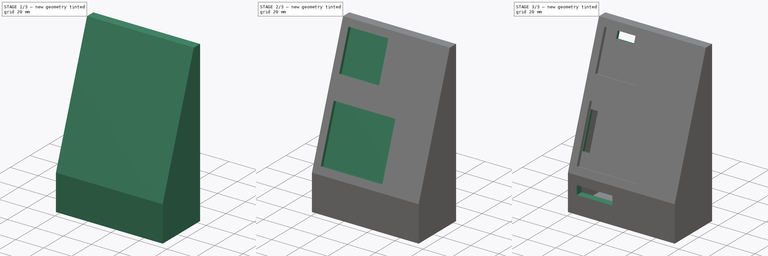
[diagram: build sequence overview — one tinted view per stage of 3, left to right]
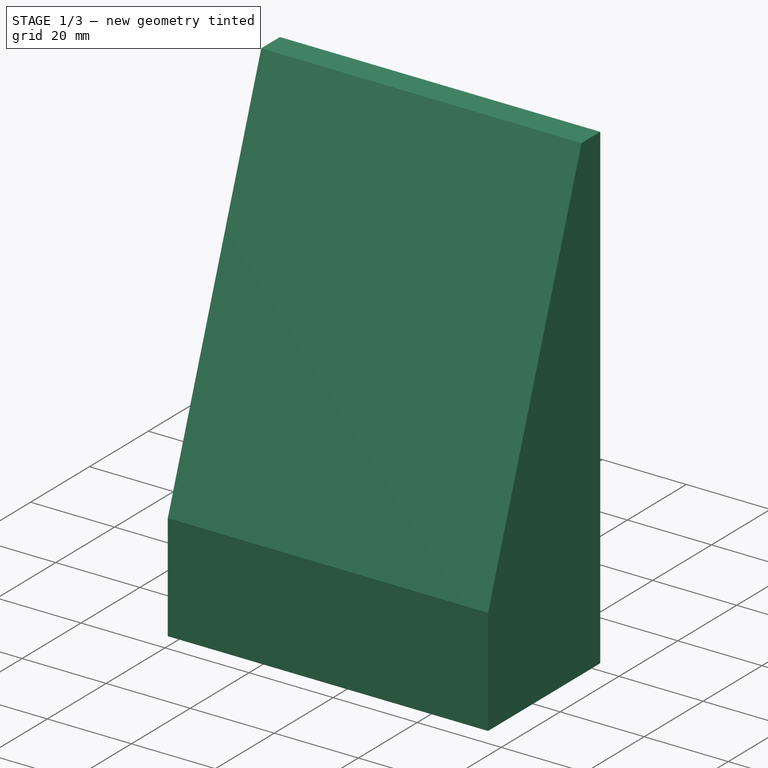
[diagram: stage 1 of 3 — iso view after this stage's code; geometry added in this stage tinted green]
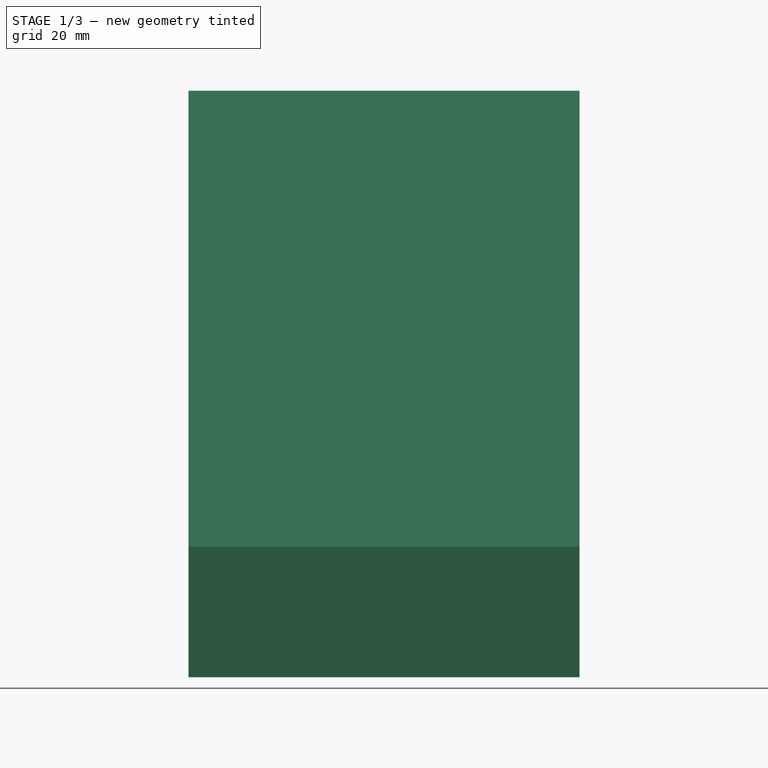
[diagram: stage 1 of 3 — front view after this stage's code; geometry added in this stage tinted green]
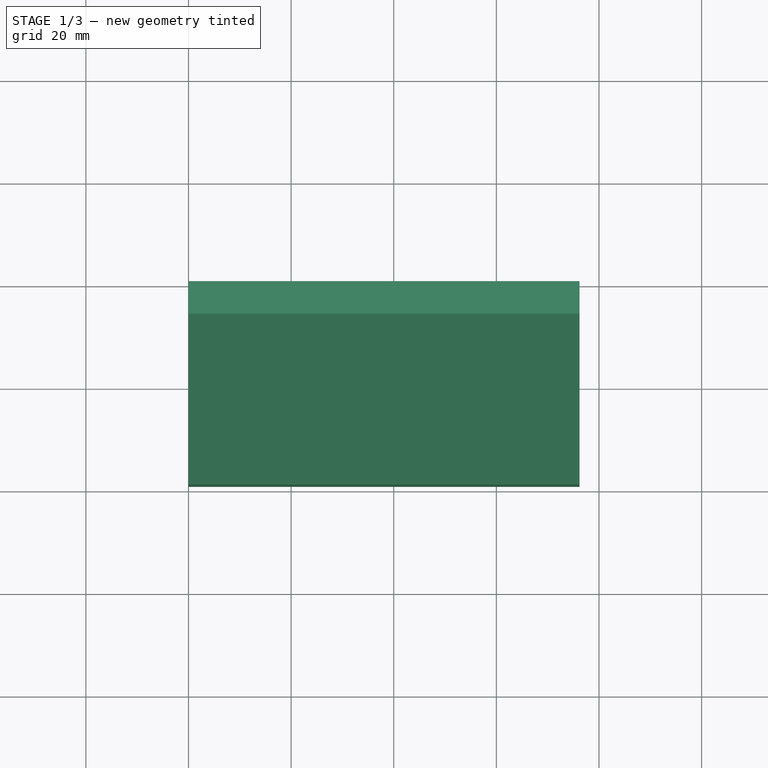
[diagram: stage 1 of 3 — top view after this stage's code; geometry added in this stage tinted green]
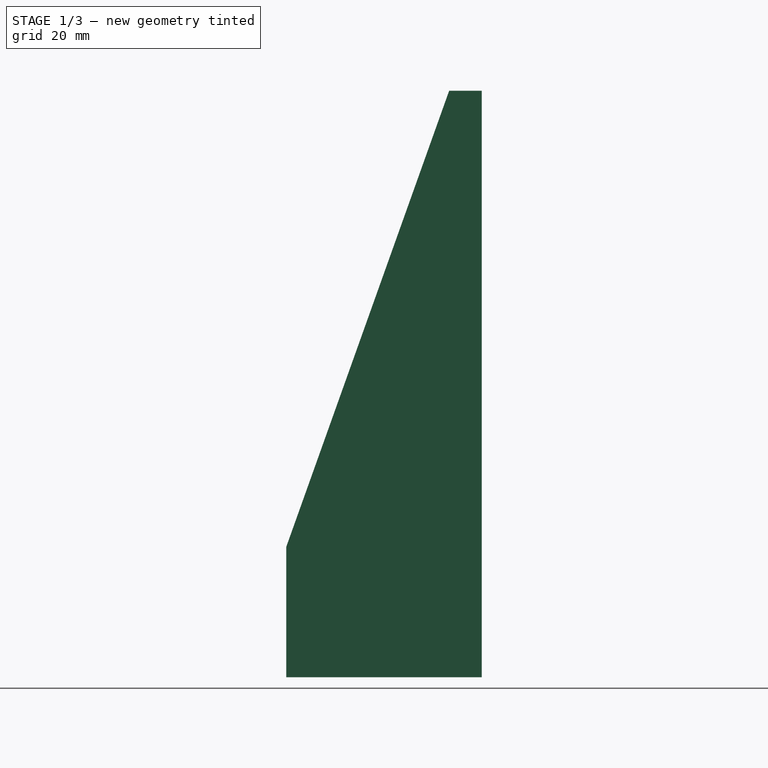
[diagram: stage 1 of 3 — right view after this stage's code; geometry added in this stage tinted green]
FCSTD DOCUMENT  (FreeCAD 0.18R4 (GitTag))
Label: Controls panel
License: All rights reserved
LicenseURL: http://en.wikipedia.org/wiki/All_rights_reserved
objects: Sketcher::SketchObject×4, PartDesign::Pocket×3, PartDesign::Pad×1, PartDesign::Thickness×1, PartDesign::Body×1
note: 14 computed .brp shape members not serialized (recipe doc carries the construction recipe); baked Part::Feature solids carry a one-line shape summary decoded from their .brp

FEATURE [Sketcher::SketchObject] Sketch
  MapMode = 5
  Placement = pos=(0,0,0) rot=(0.57735,0.57735,0.57735;2.0944rad)
  Support = -> [YZ_Plane]
  sketch-geometry (5):
    g0: LineSegment StartX=12.7 StartY=57.15 StartZ=0 EndX=19.05 EndY=57.15 EndZ=0
    g1: LineSegment StartX=19.05 StartY=57.15 StartZ=0 EndX=19.05 EndY=-57.15 EndZ=0
    g2: LineSegment StartX=19.05 StartY=-57.15 StartZ=0 EndX=-19.05 EndY=-57.15 EndZ=0
    g3: LineSegment StartX=-19.05 StartY=-57.15 StartZ=0 EndX=-19.05 EndY=-31.75 EndZ=0
    g4: LineSegment StartX=12.7 StartY=57.15 StartZ=0 EndX=-19.05 EndY=-31.75 EndZ=0
  constraints (13):
    c: Coincident(g0,g1)
    c: Coincident(g1,g2)
    c: Coincident(g2,g3)
    c: Horizontal(g0)
    c: Vertical(g3)
    c: Coincident(g0,g4)
    c: Coincident(g3,g4)
    c: DistanceX(g2,g2) = 38.1
    c: DistanceY(g1,g1) = 114.3
    c: DistanceY(g3,g3) = 25.4
    c: DistanceX(g0,g0) = 6.35
    c: Symmetric(g1,g2,g-2)
    c: Symmetric(g1,g0,g-1)
FEATURE [PartDesign::Pad] Pad  label="Body001"
  Length = 76.2
  Length2 = 100.076
  Placement = pos=(0,0,0) rot=(0.57735,0.57735,0.57735;2.0944rad)
  Profile = -> Sketch
  Type = 0
FEATURE [PartDesign::Thickness] Thickness  label="Shell"
  Base = -> Pad [Face2]
  BaseFeature = -> Pad
  Join = 0
  Mode = 0
  Reversed = true
  Value = 4.826
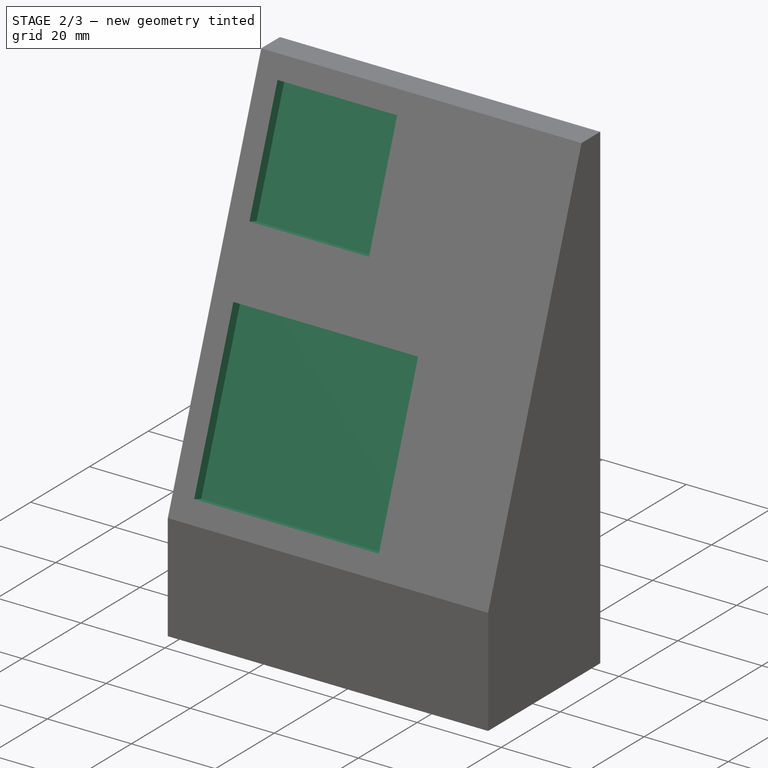
[diagram: stage 2 of 3 — iso view after this stage's code; geometry added in this stage tinted green]
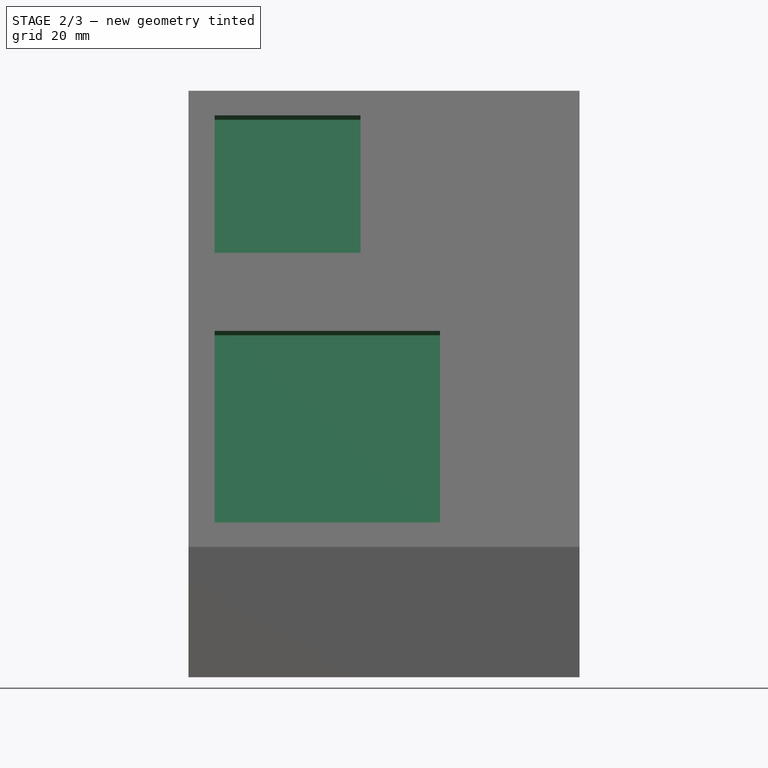
[diagram: stage 2 of 3 — front view after this stage's code; geometry added in this stage tinted green]
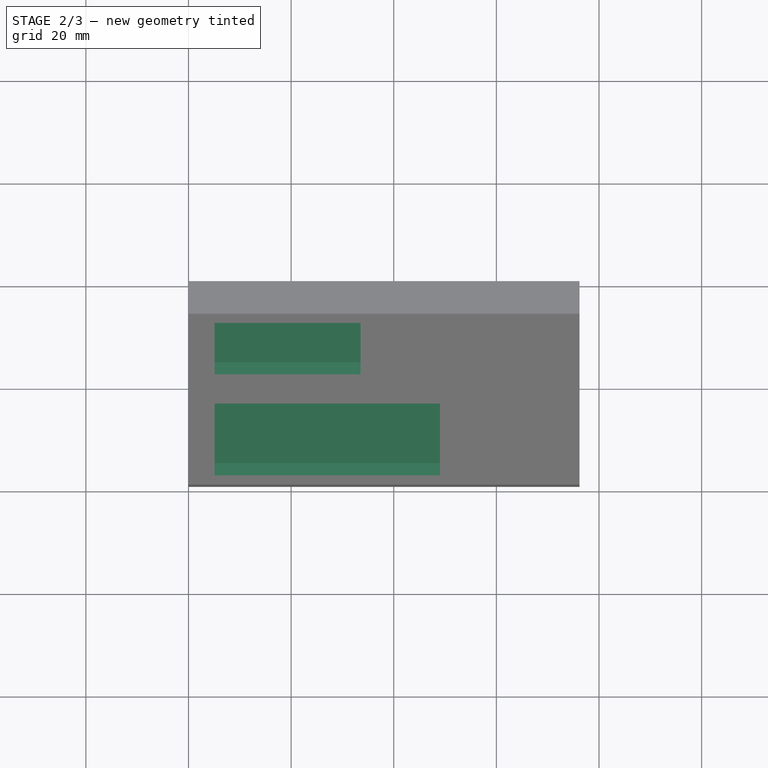
[diagram: stage 2 of 3 — top view after this stage's code; geometry added in this stage tinted green]
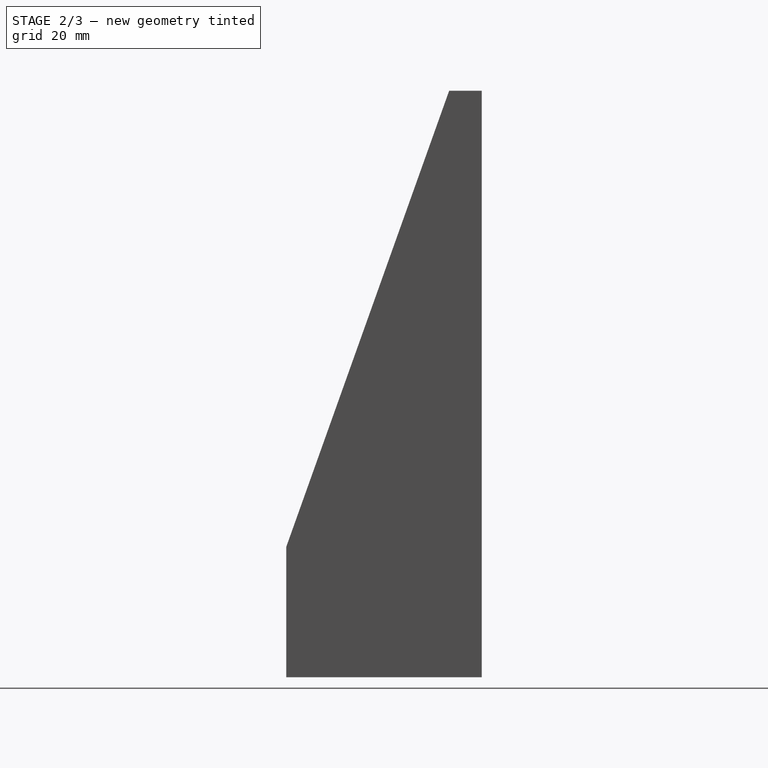
[diagram: stage 2 of 3 — right view after this stage's code; geometry added in this stage tinted green]
FEATURE [Sketcher::SketchObject] Sketch001
  ExternalGeometry = -> [Pad]
  MapMode = 5
  Placement = pos=(-4e-15,-6.83846,2.44231) rot=(1,0,0;1.22777rad)
  Support = -> [Thickness]
  sketch-geometry (8):
    g0: LineSegment StartX=5.08 StartY=8.39649 StartZ=0 EndX=49.022 EndY=8.39649 EndZ=0
    g1: LineSegment StartX=49.022 StartY=8.39649 StartZ=0 EndX=49.022 EndY=-31.2275 EndZ=0
    g2: LineSegment StartX=49.022 StartY=-31.2275 StartZ=0 EndX=5.08 EndY=-31.2275 EndZ=0
    g3: LineSegment StartX=5.08 StartY=-31.2275 StartZ=0 EndX=5.08 EndY=8.39649 EndZ=0
    g4: LineSegment StartX=5.08 StartY=24.564 StartZ=0 EndX=33.528 EndY=24.564 EndZ=0
    g5: LineSegment StartX=33.528 StartY=24.564 StartZ=0 EndX=33.528 EndY=53.012 EndZ=0
    g6: LineSegment StartX=33.528 StartY=53.012 StartZ=0 EndX=5.08 EndY=53.012 EndZ=0
    g7: LineSegment StartX=5.08 StartY=53.012 StartZ=0 EndX=5.08 EndY=24.564 EndZ=0
  constraints (24):
    c: Coincident(g0,g1)
    c: Coincident(g1,g2)
    c: Coincident(g2,g3)
    c: Coincident(g3,g0)
    c: Horizontal(g0)
    c: Horizontal(g2)
    c: Vertical(g1)
    c: Vertical(g3)
    c: DistanceY(g3,g3) = 39.624
    c: DistanceX(g0,g0) = 43.942
    c: Coincident(g4,g5)
    c: Coincident(g5,g6)
    c: Coincident(g6,g7)
    c: Coincident(g7,g4)
    c: Horizontal(g4)
    c: Horizontal(g6)
    c: Vertical(g5)
    c: Vertical(g7)
    c: DistanceY(g7,g7) = 28.448
    c: Equal(g7,g6)
    c: DistanceX(g-3,g6) = 5.08
    c: DistanceX(g-4,g2) = 5.08
    c: DistanceY(g-4,g2) = 5.08
    c: DistanceY(g6,g-3) = 5.08
FEATURE [PartDesign::Pocket] Pocket  label="Recess"
  BaseFeature = -> Thickness
  Length = 2.54
  Length2 = 100.076
  Profile = -> Sketch001
  Type = 0
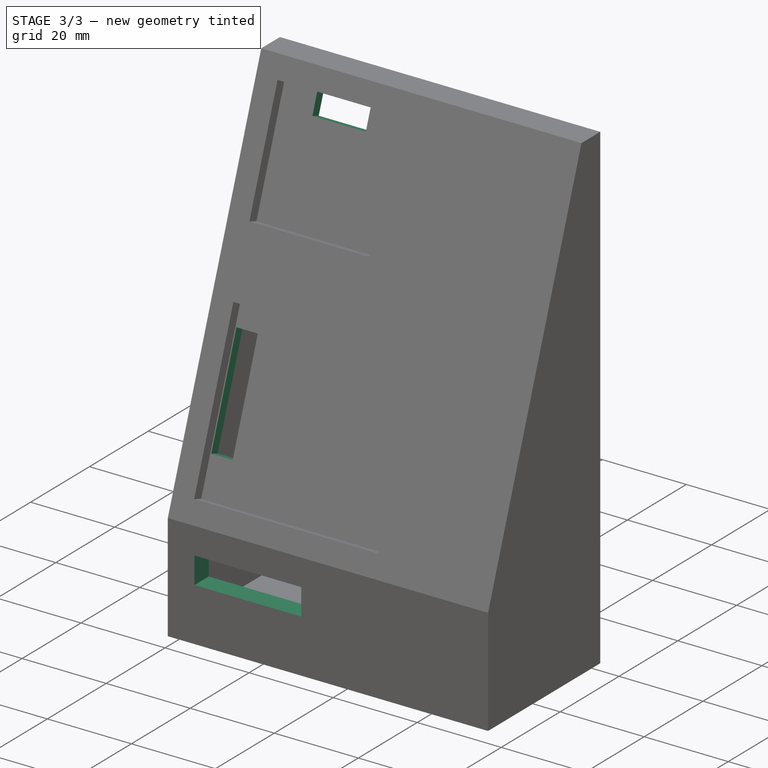
[diagram: stage 3 of 3 — iso view after this stage's code; geometry added in this stage tinted green]
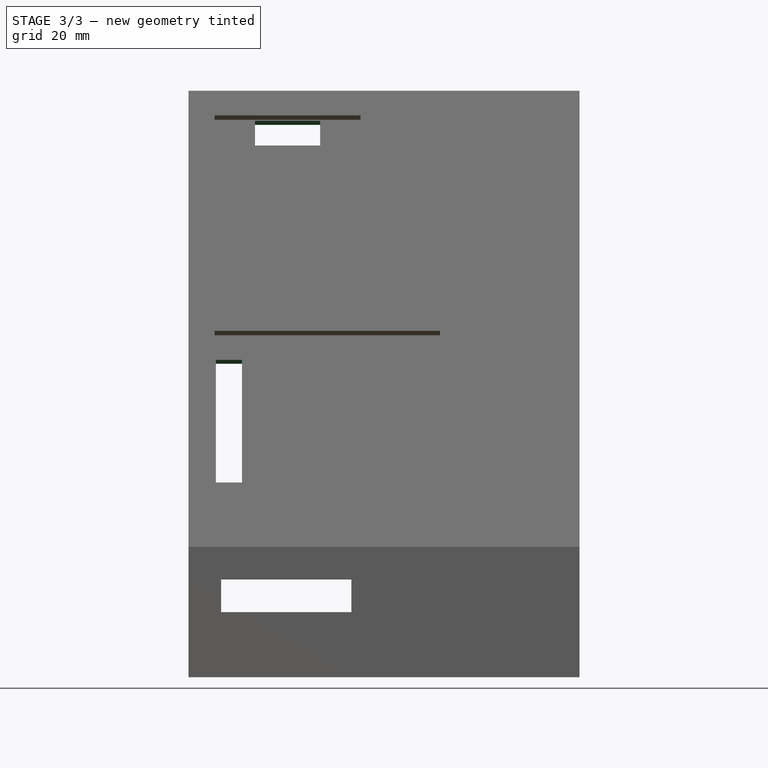
[diagram: stage 3 of 3 — front view after this stage's code; geometry added in this stage tinted green]
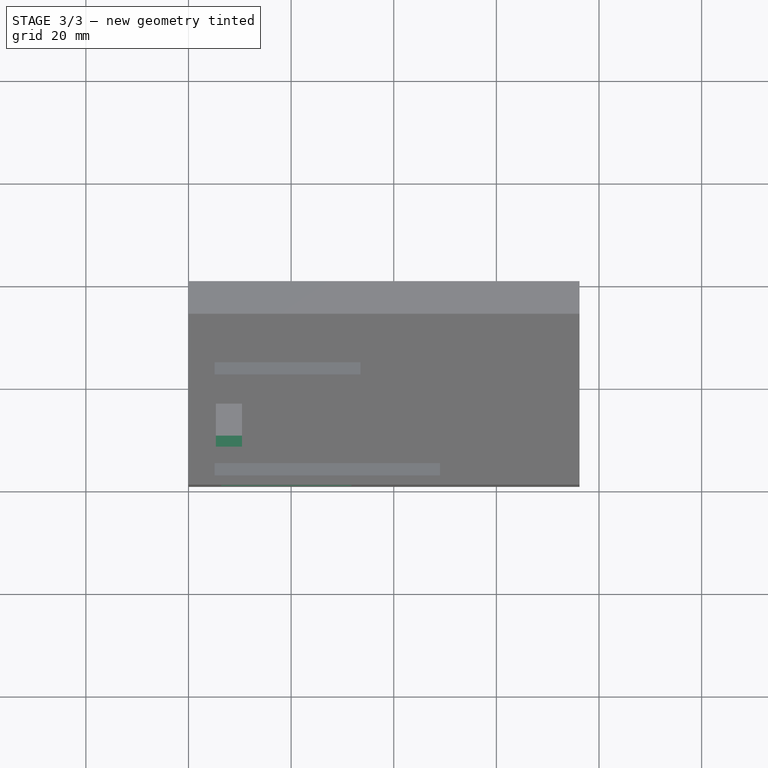
[diagram: stage 3 of 3 — top view after this stage's code; geometry added in this stage tinted green]
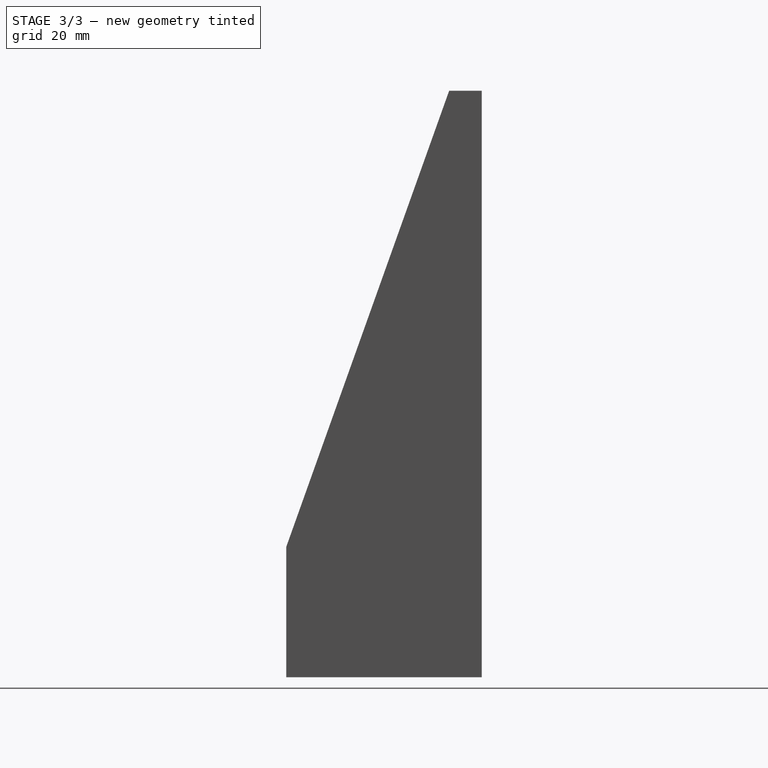
[diagram: stage 3 of 3 — right view after this stage's code; geometry added in this stage tinted green]
FEATURE [Sketcher::SketchObject] Sketch002
  ExternalGeometry = -> [Pocket]
  MapMode = 5
  Placement = pos=(-2.6e-15,-4.44644,1.58801) rot=(1,0,0;1.22777rad)
  Support = -> [Pocket]
  sketch-geometry (10):
    g0: LineSegment StartX=5.334 StartY=3.31649 StartZ=0 EndX=10.414 EndY=3.31649 EndZ=0
    g1: LineSegment StartX=10.414 StartY=3.31649 StartZ=0 EndX=10.414 EndY=-22.0835 EndZ=0
    g2: LineSegment StartX=10.414 StartY=-22.0835 StartZ=0 EndX=5.334 EndY=-22.0835 EndZ=0
    g3: LineSegment StartX=5.334 StartY=-22.0835 StartZ=0 EndX=5.334 EndY=3.31649 EndZ=0
    g4: LineSegment StartX=12.954 StartY=52.758 StartZ=0 EndX=25.654 EndY=52.758 EndZ=0
    g5: LineSegment StartX=25.654 StartY=52.758 StartZ=0 EndX=25.654 EndY=47.678 EndZ=0
    g6: LineSegment StartX=25.654 StartY=47.678 StartZ=0 EndX=12.954 EndY=47.678 EndZ=0
    g7: LineSegment StartX=12.954 StartY=47.678 StartZ=0 EndX=12.954 EndY=52.758 EndZ=0
    g8: GeomPoint X=19.304 Y=52.758 Z=0
    g9: LineSegment [constr] StartX=19.304 StartY=53.012 StartZ=0 EndX=19.304 EndY=52.758 EndZ=0
  constraints (27):
    c: Coincident(g0,g1)
    c: Coincident(g1,g2)
    c: Coincident(g2,g3)
    c: Coincident(g3,g0)
    c: Horizontal(g0)
    c: Horizontal(g2)
    c: Vertical(g1)
    c: Vertical(g3)
    c: DistanceX(g2,g2) = 5.08
    c: DistanceY(g0,g-3) = 5.08
    c: DistanceY(g1,g1) = 25.4
    c: Coincident(g4,g5)
    c: Coincident(g5,g6)
    c: Coincident(g6,g7)
    c: Coincident(g7,g4)
    c: Horizontal(g4)
    c: Horizontal(g6)
    c: Vertical(g5)
    c: Vertical(g7)
    c: DistanceX(g6,g6) = 12.7
    c: DistanceY(g5,g5) = 5.08
    c: Symmetric(g4,g4,g8)
    c: DistanceX(g-3,g0) = 0.254
    c: Vertical(g9)
    c: Symmetric(g-4,g-4,g9)
    c: DistanceY(g9,g9) = 0.254
    c: Coincident(g8,g9)
FEATURE [PartDesign::Pocket] Pocket001  label="Ribbon holes"
  BaseFeature = -> Pocket
  Length = 0
  Length2 = 100.076
  Profile = -> Sketch002
  Type = 1
FEATURE [Sketcher::SketchObject] Sketch003
  ExternalGeometry = -> [Pocket001]
  MapMode = 5
  Placement = pos=(-8.5e-15,-19.05,6.3e-15) rot=(1,0,0;1.5708rad)
  Support = -> [Pocket001]
  sketch-geometry (4):
    g0: LineSegment StartX=6.35 StartY=-38.1 StartZ=0 EndX=31.75 EndY=-38.1 EndZ=0
    g1: LineSegment StartX=31.75 StartY=-38.1 StartZ=0 EndX=31.75 EndY=-44.45 EndZ=0
    g2: LineSegment StartX=31.75 StartY=-44.45 StartZ=0 EndX=6.35 EndY=-44.45 EndZ=0
    g3: LineSegment StartX=6.35 StartY=-44.45 StartZ=0 EndX=6.35 EndY=-38.1 EndZ=0
  constraints (12):
    c: Coincident(g0,g1)
    c: Coincident(g1,g2)
    c: Coincident(g2,g3)
    c: Coincident(g3,g0)
    c: Horizontal(g0)
    c: Horizontal(g2)
    c: Vertical(g1)
    c: Vertical(g3)
    c: DistanceY(g1,g1) = 6.35
    c: DistanceX(g2,g2) = 25.4
    c: DistanceX(g-3,g2) = 6.35
    c: DistanceY(g-3,g2) = 12.7
FEATURE [PartDesign::Pocket] Pocket002  label="Main ribbon hole"
  BaseFeature = -> Pocket001
  Length = 5.08
  Length2 = 100.076
  Profile = -> Sketch003
  Type = 1
FEATURE [PartDesign::Body] Body
  Group = -> [Sketch,Pad,Sketch001,Thickness,Pocket,Sketch002,Pocket001,Sketch003,Pocket002]
  Origin = -> Origin
  Tip = -> Pocket002
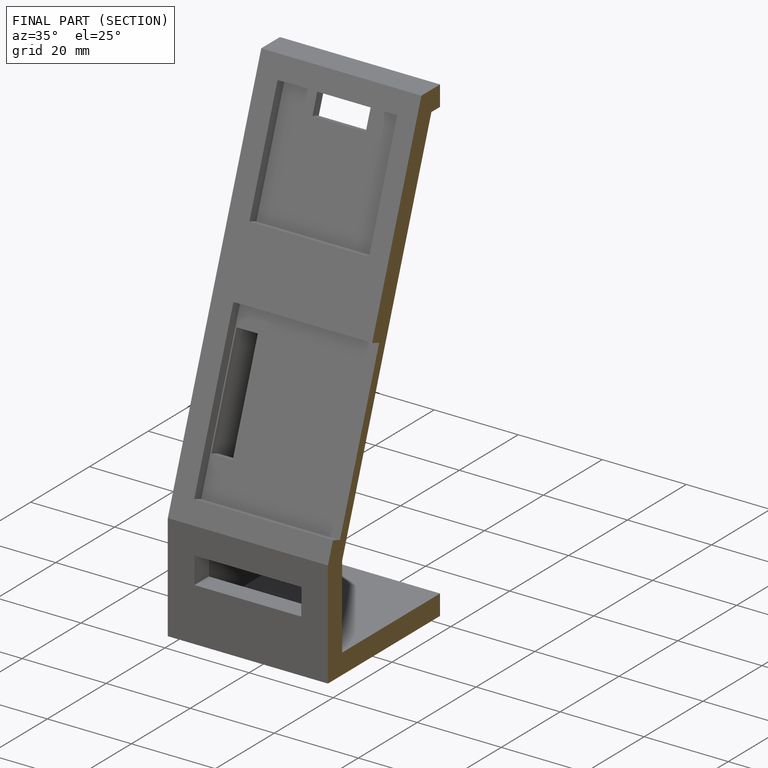
[diagram: finished part — half-section view (interior)]
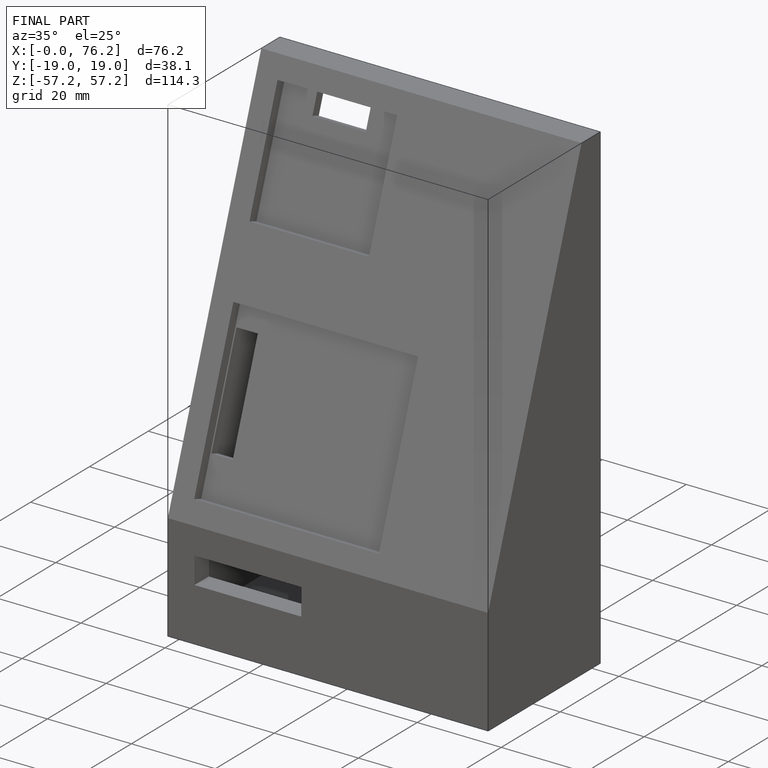
[diagram: finished part — iso view with bounding-box wireframe]
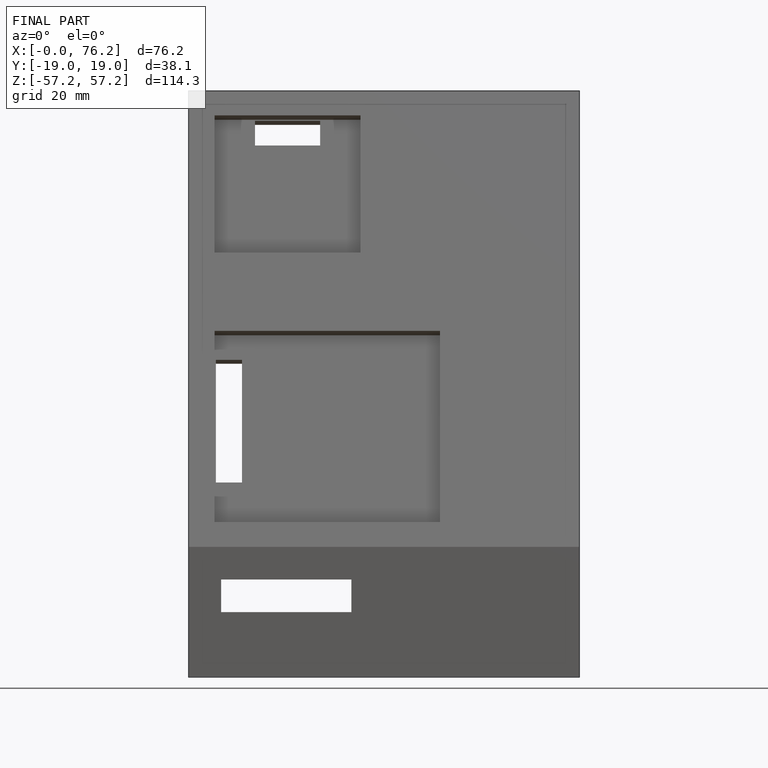
[diagram: finished part — front view with bounding-box wireframe]
